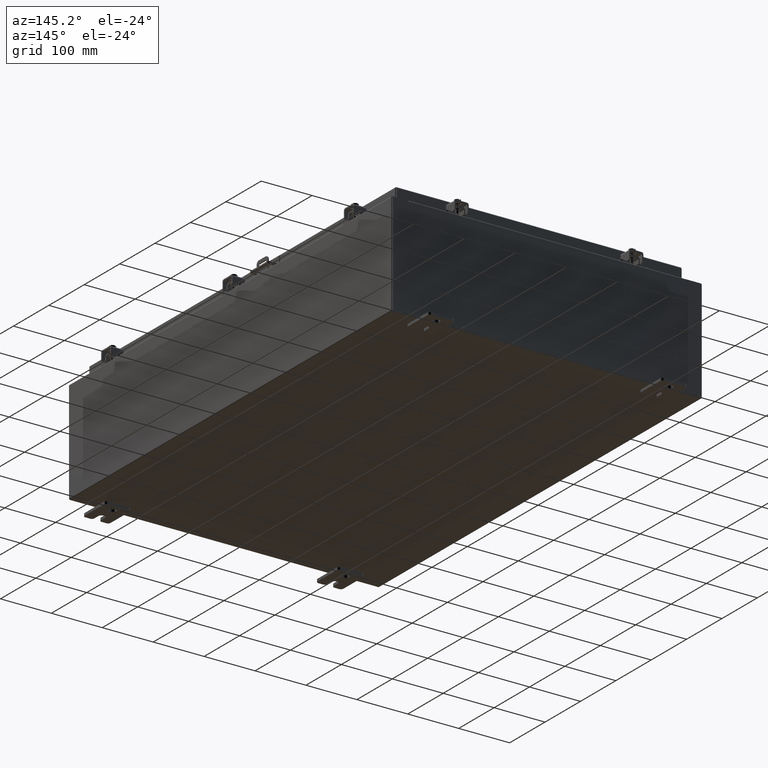
[diagram: clean part render]
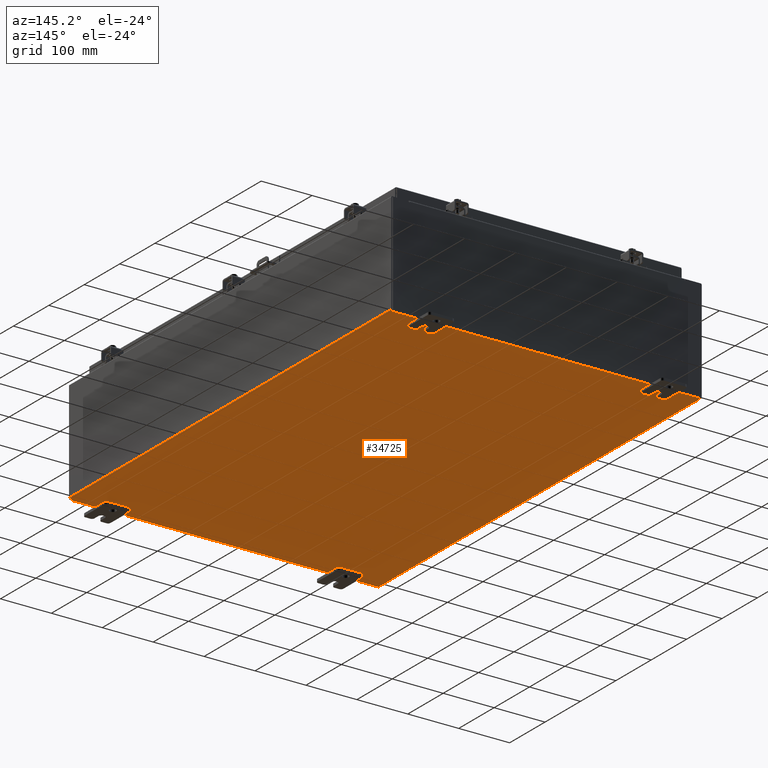
[diagram: same view with one face highlighted and labeled with its STEP entity id]
A machine part, auxiliary view. The second image highlights one B-rep face of the part: STEP entity #34725.
In plain terms, the highlighted planar face has unit normal (0, 0, -1).
Its self-contained STEP definition (entity closure, byte-faithful):
#99 = ORIENTED_EDGE ( 'NONE', *, *, #4538, .F. ) ;
#733 = CARTESIAN_POINT ( 'NONE',  ( -12.00000000000000200, -17.92530000000000400, -0.07470000000000000300 ) ) ;
#786 = DIRECTION ( 'NONE',  ( -1.000000000000000000, -0.0000000000000000000, -0.0000000000000000000 ) ) ;
#2272 = EDGE_CURVE ( 'NONE', #23325, #8643, #18226, .T. ) ;
#3791 = VECTOR ( 'NONE', #786, 39.37007874015748100 ) ;
#4538 = EDGE_CURVE ( 'NONE', #19248, #29237, #37363, .T. ) ;
#5493 = LINE ( 'NONE', #31574, #30499 ) ;
#8643 = VERTEX_POINT ( 'NONE', #38526 ) ;
#9021 = LINE ( 'NONE', #19304, #16698 ) ;
#9884 = CARTESIAN_POINT ( 'NONE',  ( -11.91230000000000000, -17.92530000000000400, -0.07469999999999994700 ) ) ;
#9991 = ORIENTED_EDGE ( 'NONE', *, *, #41538, .T. ) ;
#10856 = PLANE ( 'NONE',  #38367 ) ;
#12859 = CARTESIAN_POINT ( 'NONE',  ( -11.91230000000000000, 17.92529999999999600, -0.07470000000000000300 ) ) ;
#15612 = FACE_OUTER_BOUND ( 'NONE', #38223, .T. ) ;
#16698 = VECTOR ( 'NONE', #29000, 39.37007874015748100 ) ;
#17199 = CARTESIAN_POINT ( 'NONE',  ( 11.91230000000000000, 17.92529999999999600, -0.07469999999999738000 ) ) ;
#17293 = CARTESIAN_POINT ( 'NONE',  ( 0.0000000000000000000, 0.0000000000000000000, -0.07470000000000000300 ) ) ;
#18226 = LINE ( 'NONE', #733, #19230 ) ;
#19230 = VECTOR ( 'NONE', #34558, 39.37007874015748100 ) ;
#19248 = VERTEX_POINT ( 'NONE', #17199 ) ;
#19304 = CARTESIAN_POINT ( 'NONE',  ( 11.91230000000000000, 17.92529999999999600, -0.07469999999999738000 ) ) ;
#20738 = DIRECTION ( 'NONE',  ( -1.000000000000000000, 0.0000000000000000000, -0.0000000000000000000 ) ) ;
#22933 = ORIENTED_EDGE ( 'NONE', *, *, #2272, .F. ) ;
#23325 = VERTEX_POINT ( 'NONE', #9884 ) ;
#27690 = ORIENTED_EDGE ( 'NONE', *, *, #41667, .T. ) ;
#29000 = DIRECTION ( 'NONE',  ( -0.0000000000000000000, -1.000000000000000000, -8.208677865577646300E-017 ) ) ;
#29237 = VERTEX_POINT ( 'NONE', #12859 ) ;
#30499 = VECTOR ( 'NONE', #34851, 39.37007874015748100 ) ;
#31574 = CARTESIAN_POINT ( 'NONE',  ( -11.91230000000000000, -17.92530000000000400, -0.07469999999999994700 ) ) ;
#34558 = DIRECTION ( 'NONE',  ( 1.000000000000000000, 0.0000000000000000000, 0.0000000000000000000 ) ) ;
#34725 = ADVANCED_FACE ( 'NONE', ( #15612 ), #10856, .T. ) ;
#34851 = DIRECTION ( 'NONE',  ( -0.0000000000000000000, 1.000000000000000000, -0.0000000000000000000 ) ) ;
#37363 = LINE ( 'NONE', #39039, #3791 ) ;
#38223 = EDGE_LOOP ( 'NONE', ( #22933, #9991, #99, #27690 ) ) ;
#38367 = AXIS2_PLACEMENT_3D ( 'NONE', #17293, #40228, #20738 ) ;
#38526 = CARTESIAN_POINT ( 'NONE',  ( 11.91229999999999100, -17.92530000000000400, -0.07470000000000000300 ) ) ;
#39039 = CARTESIAN_POINT ( 'NONE',  ( -12.00000000000000200, 17.92529999999999600, -0.07470000000000000300 ) ) ;
#40228 = DIRECTION ( 'NONE',  ( 0.0000000000000000000, 0.0000000000000000000, -1.000000000000000000 ) ) ;
#41538 = EDGE_CURVE ( 'NONE', #23325, #29237, #5493, .T. ) ;
#41667 = EDGE_CURVE ( 'NONE', #19248, #8643, #9021, .T. ) ;